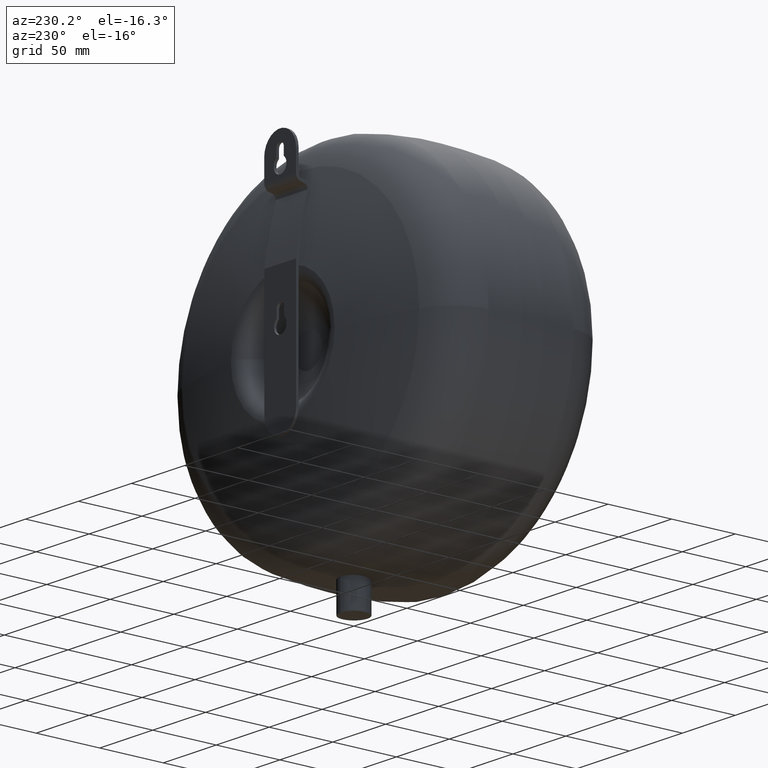
[diagram: clean part render]
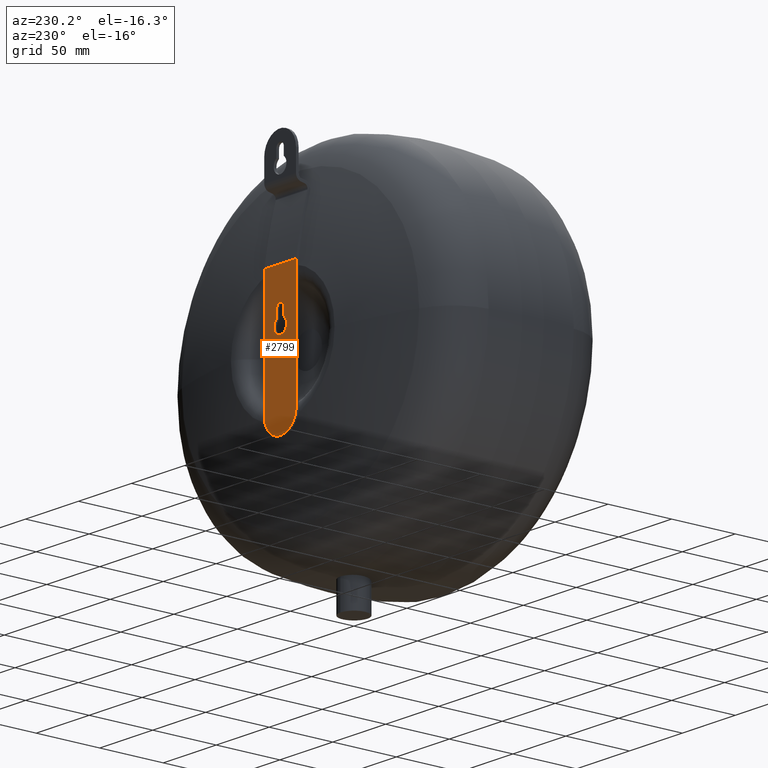
[diagram: same view with one face highlighted and labeled with its STEP entity id]
A machine part, auxiliary view. The second image highlights one B-rep face of the part: STEP entity #2799.
In plain terms, the highlighted planar face has unit normal (0, 1, 0).
Its self-contained STEP definition (entity closure, byte-faithful):
#2364=CARTESIAN_POINT('',(-3.500000000000021,57.946043471277648,176.87933645119494));
#2365=VERTEX_POINT('',#2364);
#2372=CARTESIAN_POINT('',(-3.500000000000021,57.946043471277648,183.00593927879052));
#2373=VERTEX_POINT('',#2372);
#2374=CARTESIAN_POINT('',(-3.500000000000019,57.946043471277648,183.00593927879052));
#2375=DIRECTION('',(0.0,0.0,-1.0));
#2376=VECTOR('',#2375,6.126602827595576);
#2377=LINE('',#2374,#2376);
#2378=EDGE_CURVE('',#2373,#2365,#2377,.T.);
#2404=CARTESIAN_POINT('',(3.499999999999979,57.946043471277648,183.00593927879052));
#2405=VERTEX_POINT('',#2404);
#2406=CARTESIAN_POINT('',(-1.421085E-014,57.946043471277648,183.00593927879052));
#2407=DIRECTION('',(0.0,-1.0,0.0));
#2408=DIRECTION('',(-1.0,0.0,0.0));
#2409=AXIS2_PLACEMENT_3D('',#2406,#2407,#2408);
#2410=CIRCLE('',#2409,3.5);
#2411=EDGE_CURVE('',#2405,#2373,#2410,.T.);
#2436=CARTESIAN_POINT('',(3.499999999999979,57.946043471277648,176.87933645119503));
#2437=VERTEX_POINT('',#2436);
#2438=CARTESIAN_POINT('',(3.499999999999981,57.946043471277648,176.87933645119503));
#2439=DIRECTION('',(0.0,0.0,1.0));
#2440=VECTOR('',#2439,6.126602827595491);
#2441=LINE('',#2438,#2440);
#2442=EDGE_CURVE('',#2437,#2405,#2441,.T.);
#2466=CARTESIAN_POINT('',(2.842171E-014,57.946043471277648,172.00593927879052));
#2467=DIRECTION('',(-6.250595E-017,-1.0,-8.703323E-017));
#2468=DIRECTION('',(0.583333333333326,-1.071531E-016,0.812232862067419));
#2469=AXIS2_PLACEMENT_3D('',#2466,#2467,#2468);
#2470=CIRCLE('',#2469,6.000000000000001);
#2471=EDGE_CURVE('',#2365,#2437,#2470,.T.);
#2658=CARTESIAN_POINT('',(-14.999999999999979,57.946043471277648,117.50000000000006));
#2659=VERTEX_POINT('',#2658);
#2666=CARTESIAN_POINT('',(15.000000000000028,57.94604347127764,117.50000000000006));
#2667=VERTEX_POINT('',#2666);
#2668=CARTESIAN_POINT('',(2.131628E-014,57.946043471277648,117.50000000000006));
#2669=DIRECTION('',(-9.184548E-017,-1.0,-9.184548E-017));
#2670=DIRECTION('',(-0.707106781186547,1.298891E-016,-0.707106781186547));
#2671=AXIS2_PLACEMENT_3D('',#2668,#2669,#2670);
#2672=CIRCLE('',#2671,15.0);
#2673=EDGE_CURVE('',#2659,#2667,#2672,.T.);
#2763=CARTESIAN_POINT('',(15.000000000000028,57.94604347127764,102.50000000000006));
#2764=DIRECTION('',(0.0,1.0,0.0));
#2765=DIRECTION('',(-1.0,0.0,0.0));
#2766=AXIS2_PLACEMENT_3D('',#2763,#2764,#2765);
#2767=PLANE('',#2766);
#2768=ORIENTED_EDGE('',*,*,#2673,.F.);
#2769=CARTESIAN_POINT('',(-14.999999999999972,57.946043471277655,210.77583736690997));
#2770=VERTEX_POINT('',#2769);
#2771=CARTESIAN_POINT('',(-14.999999999999977,57.946043471277648,117.50000000000006));
#2772=DIRECTION('',(0.0,0.0,1.0));
#2773=VECTOR('',#2772,93.275837366909911);
#2774=LINE('',#2771,#2773);
#2775=EDGE_CURVE('',#2659,#2770,#2774,.T.);
#2776=ORIENTED_EDGE('',*,*,#2775,.T.);
#2777=CARTESIAN_POINT('',(15.000000000000028,57.946043471277648,210.77583736690997));
#2778=VERTEX_POINT('',#2777);
#2779=CARTESIAN_POINT('',(15.000000000000028,57.946043471277648,210.77583736690997));
#2780=DIRECTION('',(-1.0,0.0,0.0));
#2781=VECTOR('',#2780,30.0);
#2782=LINE('',#2779,#2781);
#2783=EDGE_CURVE('',#2778,#2770,#2782,.T.);
#2784=ORIENTED_EDGE('',*,*,#2783,.F.);
#2785=CARTESIAN_POINT('',(15.000000000000028,57.946043471277648,210.77583736690997));
#2786=DIRECTION('',(0.0,0.0,-1.0));
#2787=VECTOR('',#2786,93.275837366909911);
#2788=LINE('',#2785,#2787);
#2789=EDGE_CURVE('',#2778,#2667,#2788,.T.);
#2790=ORIENTED_EDGE('',*,*,#2789,.T.);
#2791=EDGE_LOOP('',(#2768,#2776,#2784,#2790));
#2792=FACE_OUTER_BOUND('',#2791,.T.);
#2793=ORIENTED_EDGE('',*,*,#2442,.T.);
#2794=ORIENTED_EDGE('',*,*,#2411,.T.);
#2795=ORIENTED_EDGE('',*,*,#2378,.T.);
#2796=ORIENTED_EDGE('',*,*,#2471,.T.);
#2797=EDGE_LOOP('',(#2793,#2794,#2795,#2796));
#2798=FACE_BOUND('',#2797,.T.);
#2799=ADVANCED_FACE('',(#2792,#2798),#2767,.T.);